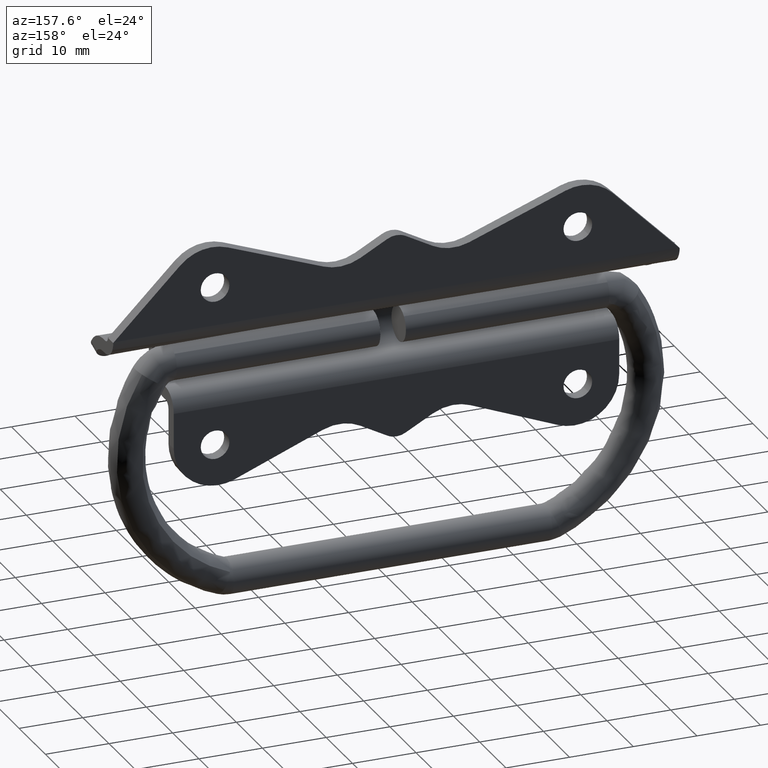
[diagram: clean part render]
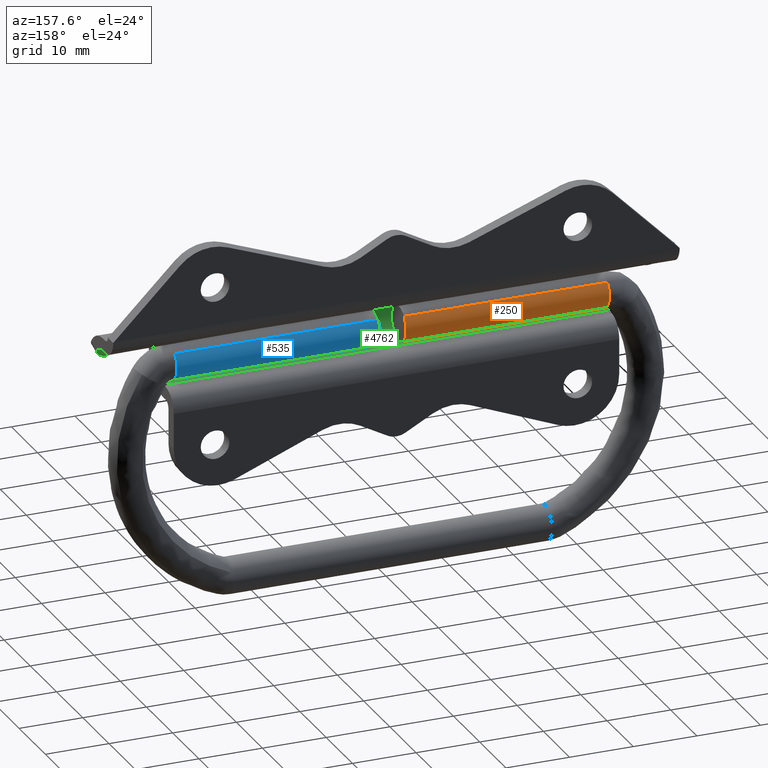
[diagram: same view with three faces highlighted in distinct colors, each labeled with its STEP entity id]
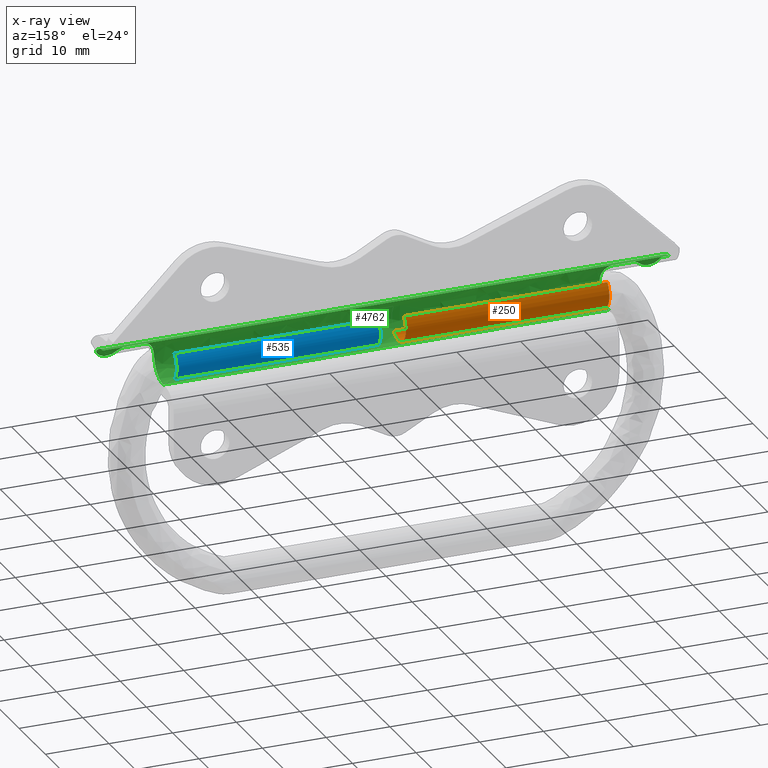
[diagram: x-ray of the same camera — body ghosted, the three highlighted faces saturated]
A machine part, auxiliary view with three faces highlighted in distinct colors.
The next image is the same camera in x-ray (body ghosted, the three faces saturated) — at least one of them is partly hidden behind the body in this view.
Their STEP definitions:

[orange] entity #250 — the highlighted face is a freeform B-spline surface patch.
#68=CARTESIAN_POINT('',(-2.000000000001109,1.970789749872381,1.917937691700324));
#69=VERTEX_POINT('',#68);
#79=CARTESIAN_POINT('',(-33.981062533550563,1.970790089012242,1.917938066010240));
#80=VERTEX_POINT('',#79);
#81=CARTESIAN_POINT('',(-33.981062533550563,1.970790089012242,1.917938066010240));
#82=CARTESIAN_POINT('',(-2.000000000001109,1.970789749872381,1.917937691700324));
#83=QUASI_UNIFORM_CURVE('',1,(#81,#82),.UNSPECIFIED.,.F.,.U.);
#84=EDGE_CURVE('',#80,#69,#83,.T.);
#112=CARTESIAN_POINT('',(-33.981062533732889,-1.857872832860353,-2.027512213007922));
#113=VERTEX_POINT('',#112);
#123=CARTESIAN_POINT('',(-2.000000000001109,-1.857872831660675,-2.027512214107224));
#124=VERTEX_POINT('',#123);
#125=CARTESIAN_POINT('',(-33.981062533732889,-1.857872832860353,-2.027512213007922));
#126=CARTESIAN_POINT('',(-2.000000000001109,-1.857872831660675,-2.027512214107224));
#127=QUASI_UNIFORM_CURVE('',1,(#125,#126),.UNSPECIFIED.,.F.,.U.);
#128=EDGE_CURVE('',#113,#124,#127,.T.);
#156=CARTESIAN_POINT('',(-34.780589099205123,-1.857873070943064,-2.027512676227842));
#157=CARTESIAN_POINT('',(-34.780589099205109,0.169639605284778,-3.885385747170906));
#158=CARTESIAN_POINT('',(-34.780589099205123,2.027512676227841,-1.857873070943064));
#159=CARTESIAN_POINT('',(-34.780589099205123,3.782001501671943,0.056815499295128));
#160=CARTESIAN_POINT('',(-34.780589099205123,1.970790173617540,1.917937979073501));
#161=CARTESIAN_POINT('',(-1.180485272521011,-1.857873070943064,-2.027512676227842));
#162=CARTESIAN_POINT('',(-1.180485272521011,0.169639605284778,-3.885385747170906));
#163=CARTESIAN_POINT('',(-1.180485272521011,2.027512676227841,-1.857873070943064));
#164=CARTESIAN_POINT('',(-1.180485272521011,3.782001501671943,0.056815499295128));
#165=CARTESIAN_POINT('',(-1.180485272521012,1.970790173617540,1.917937979073501));
#173=(BOUNDED_SURFACE()B_SPLINE_SURFACE(2,1,((#156,#161),(#157,#162),(#158,#163),(#159,#164),(#160,#165)),.UNSPECIFIED.,.F.,.F.,.U.)B_SPLINE_SURFACE_WITH_KNOTS((3,2,3),(2,2),(0.0,4.556349186104044,8.930444404763927),(0.0,33.600103826684112),.UNSPECIFIED.)GEOMETRIC_REPRESENTATION_ITEM()RATIONAL_B_SPLINE_SURFACE(((1.0,1.0),(0.707106781186548,0.707106781186548),(1.0,1.0),(0.718822509939086,0.718822509939086),(0.977505800795127,0.977505800795127)))REPRESENTATION_ITEM('')SURFACE());
#174=CARTESIAN_POINT('',(-2.000000000001110,2.749999999999260,-0.000002017147148));
#175=VERTEX_POINT('',#174);
#176=CARTESIAN_POINT('',(-2.000000000001109,1.970789749872381,1.917937691700324));
#177=CARTESIAN_POINT('',(-2.000000000001110,2.233320862650299,1.648863534074915));
#178=CARTESIAN_POINT('',(-2.000000000001112,2.620357776142525,1.038929036266846));
#179=CARTESIAN_POINT('',(-2.000000000001108,2.750277876837572,0.331677750709562));
#180=CARTESIAN_POINT('',(-2.000000000001110,2.749999999999260,-0.000002017147148));
#181=B_SPLINE_CURVE_WITH_KNOTS('',3,(#176,#177,#178,#179,#180),.UNSPECIFIED.,.F.,.U.,(4,1,4),(0.000000044119731,1.127581729578845,2.122525000011416),.UNSPECIFIED.);
#182=EDGE_CURVE('',#69,#175,#181,.T.);
#183=ORIENTED_EDGE('',*,*,#182,.T.);
#184=CARTESIAN_POINT('',(-2.000000000001110,0.0,-2.750000000000000));
#185=VERTEX_POINT('',#184);
#186=CARTESIAN_POINT('',(-2.000000000001110,2.749999999999260,-0.000002017147148));
#187=CARTESIAN_POINT('',(-2.000000000001108,2.750015365352819,-0.179980450263300));
#188=CARTESIAN_POINT('',(-2.000000000001113,2.707932078950563,-0.607462554633562));
#189=CARTESIAN_POINT('',(-2.000000000001108,2.508537933964640,-1.187116428170109));
#190=CARTESIAN_POINT('',(-2.000000000001108,2.109461070353325,-1.817507590486431));
#191=CARTESIAN_POINT('',(-2.000000000001122,1.534336724816101,-2.338881066016894));
#192=CARTESIAN_POINT('',(-2.000000000001090,0.764918915098658,-2.679685972453907));
#193=CARTESIAN_POINT('',(-2.000000000001126,0.247484863998335,-2.750076068007349));
#194=CARTESIAN_POINT('',(-2.000000000001110,0.0,-2.750000000000000));
#195=B_SPLINE_CURVE_WITH_KNOTS('',3,(#186,#187,#188,#189,#190,#191,#192,#193,#194),.UNSPECIFIED.,.F.,.U.,(4,1,1,1,1,1,4),(0.000000112675974,0.539954299364666,1.282445865138592,1.822447339180976,2.767355044537226,3.577333515327831,4.319797159997087),.UNSPECIFIED.);
#196=EDGE_CURVE('',#175,#185,#195,.T.);
#197=ORIENTED_EDGE('',*,*,#196,.T.);
#198=CARTESIAN_POINT('',(-2.000000000001110,0.0,-2.750000000000000));
#199=CARTESIAN_POINT('',(-2.000000000001105,-0.318761813068481,-2.750240986097441));
#200=CARTESIAN_POINT('',(-2.000000000001121,-0.998517648169818,-2.630358229492555));
#201=CARTESIAN_POINT('',(-2.000000000001104,-1.591784569032334,-2.271906993404191));
#202=CARTESIAN_POINT('',(-2.000000000001109,-1.857872831660675,-2.027512214107224));
#203=B_SPLINE_CURVE_WITH_KNOTS('',3,(#198,#199,#200,#201,#202),.UNSPECIFIED.,.F.,.U.,(4,1,4),(0.000000036204607,0.956211387785189,2.039899171962989),.UNSPECIFIED.);
#204=EDGE_CURVE('',#185,#124,#203,.T.);
#205=ORIENTED_EDGE('',*,*,#204,.T.);
#206=ORIENTED_EDGE('',*,*,#128,.F.);
#207=CARTESIAN_POINT('',(-33.981062533734203,-2.296137E-016,-2.750000000000000));
#208=VERTEX_POINT('',#207);
#209=CARTESIAN_POINT('',(-33.981062533734203,-2.296137E-016,-2.750000000000000));
#210=CARTESIAN_POINT('',(-33.981062533733947,-0.361277114100543,-2.750371904080902));
#211=CARTESIAN_POINT('',(-33.981062533733528,-1.040880719888545,-2.613945279301323));
#212=CARTESIAN_POINT('',(-33.981062533733031,-1.623013689535384,-2.243030740816635));
#213=CARTESIAN_POINT('',(-33.981062533732889,-1.857872832860353,-2.027512213007922));
#214=B_SPLINE_CURVE_WITH_KNOTS('',3,(#209,#210,#211,#212,#213),.UNSPECIFIED.,.F.,.U.,(4,1,4),(0.000000036204650,1.083687821229191,2.039899173590272),.UNSPECIFIED.);
#215=EDGE_CURVE('',#208,#113,#214,.T.);
#216=ORIENTED_EDGE('',*,*,#215,.F.);
#217=CARTESIAN_POINT('',(-33.981062535809897,1.065289451035193,-2.535282703272583));
#218=VERTEX_POINT('',#217);
#219=CARTESIAN_POINT('',(-33.981062535809897,1.065289451035193,-2.535282703272583));
#220=CARTESIAN_POINT('',(-33.981062534441662,0.729183679977894,-2.676806499385691));
#221=CARTESIAN_POINT('',(-33.981062533732420,0.364669892470249,-2.750194099655849));
#222=CARTESIAN_POINT('',(-33.981062533734203,-2.296137E-016,-2.750000000000000));
#223=B_SPLINE_CURVE_WITH_KNOTS('',3,(#219,#220,#221,#222),.UNSPECIFIED.,.F.,.U.,(4,4),(7.671848E-009,1.093939133476157),.UNSPECIFIED.);
#224=EDGE_CURVE('',#218,#208,#223,.T.);
#225=ORIENTED_EDGE('',*,*,#224,.F.);
#226=CARTESIAN_POINT('',(-33.981062535251169,2.340234824756398,-1.444230232683622));
#227=VERTEX_POINT('',#226);
#228=CARTESIAN_POINT('',(-33.981062535251169,2.340234824756398,-1.444230232683622));
#229=CARTESIAN_POINT('',(-33.981062534791569,2.200385593994336,-1.671040790827991));
#230=CARTESIAN_POINT('',(-33.981062534352510,1.830938782508246,-2.110901726353057));
#231=CARTESIAN_POINT('',(-33.981062535097067,1.343780914882861,-2.418483747542214));
#232=CARTESIAN_POINT('',(-33.981062535809897,1.065289451035193,-2.535282703272583));
#233=B_SPLINE_CURVE_WITH_KNOTS('',3,(#228,#229,#230,#231,#232),.UNSPECIFIED.,.F.,.U.,(4,1,4),(0.000000028580688,0.799359490042545,1.705274761928077),.UNSPECIFIED.);
#234=EDGE_CURVE('',#227,#218,#233,.T.);
#235=ORIENTED_EDGE('',*,*,#234,.F.);
#236=CARTESIAN_POINT('',(-33.981062533550563,1.970790089012242,1.917938066010240));
#237=CARTESIAN_POINT('',(-33.981062533612423,2.235878336360660,1.646253094349406));
#238=CARTESIAN_POINT('',(-33.981062533772722,2.536025457715319,1.171133006203666));
#239=CARTESIAN_POINT('',(-33.981062534115402,2.740329983376412,0.416946847351416));
#240=CARTESIAN_POINT('',(-33.981062534396408,2.765687179886545,-0.117801226936726));
#241=CARTESIAN_POINT('',(-33.981062534784733,2.666627915332732,-0.776240753774080));
#242=CARTESIAN_POINT('',(-33.981062535059877,2.499877766630544,-1.185964645352375));
#243=CARTESIAN_POINT('',(-33.981062535251169,2.340234824756398,-1.444230232683622));
#244=B_SPLINE_CURVE_WITH_KNOTS('',3,(#236,#237,#238,#239,#240,#241,#242,#243),.UNSPECIFIED.,.F.,.U.,(4,1,1,1,1,4),(0.000000124910282,1.138469214587453,1.650795331450802,2.333835635815750,2.732300773864886,3.643067643411854),.UNSPECIFIED.);
#245=EDGE_CURVE('',#80,#227,#244,.T.);
#246=ORIENTED_EDGE('',*,*,#245,.F.);
#247=ORIENTED_EDGE('',*,*,#84,.T.);
#248=EDGE_LOOP('',(#183,#197,#205,#206,#216,#225,#235,#246,#247));
#249=FACE_OUTER_BOUND('',#248,.T.);
#250=ADVANCED_FACE('',(#249),#173,.T.);

[blue] entity #535 — the highlighted face is a freeform B-spline surface patch.
#457=CARTESIAN_POINT('',(1.200473436590970,1.917937979073501,-1.970790173617539));
#458=CARTESIAN_POINT('',(1.200473436590970,1.974341147133709,-1.915899612658343));
#459=CARTESIAN_POINT('',(1.200473436590970,2.027512676227842,-1.857873070943064));
#460=CARTESIAN_POINT('',(1.200473436590970,3.885385747170906,0.169639605284778));
#461=CARTESIAN_POINT('',(1.200473436590970,1.857873070943064,2.027512676227842));
#462=CARTESIAN_POINT('',(34.800577263808783,1.917937979073501,-1.970790173617539));
#463=CARTESIAN_POINT('',(34.800577263808790,1.974341147133709,-1.915899612658343));
#464=CARTESIAN_POINT('',(34.800577263808783,2.027512676227842,-1.857873070943064));
#465=CARTESIAN_POINT('',(34.800577263808783,3.885385747170906,0.169639605284778));
#466=CARTESIAN_POINT('',(34.800577263808783,1.857873070943064,2.027512676227842));
#474=(BOUNDED_SURFACE()B_SPLINE_SURFACE(2,1,((#457,#462),(#458,#463),(#459,#464),(#460,#465),(#461,#466)),.UNSPECIFIED.,.F.,.F.,.U.)B_SPLINE_SURFACE_WITH_KNOTS((3,2,3),(2,2),(0.0,0.182253967444161,4.738603153548205),(0.0,33.600103827217822),.UNSPECIFIED.)GEOMETRIC_REPRESENTATION_ITEM()RATIONAL_B_SPLINE_SURFACE(((0.977505800795127,0.977505800795127),(0.988284271247462,0.988284271247462),(1.0,1.0),(0.707106781186548,0.707106781186548),(1.0,1.0)))REPRESENTATION_ITEM('')SURFACE());
#475=CARTESIAN_POINT('',(33.981062533731937,2.749999999999260,-0.000002017147148));
#476=VERTEX_POINT('',#475);
#477=CARTESIAN_POINT('',(33.981062533732299,1.917938386890228,-1.970790480148908));
#478=VERTEX_POINT('',#477);
#479=CARTESIAN_POINT('',(33.981062533731937,2.749999999999260,-0.000002017147148));
#480=CARTESIAN_POINT('',(33.981062533732050,2.750174103478151,-0.297565216022169));
#481=CARTESIAN_POINT('',(33.981062533732008,2.659975026607757,-0.846765203789295));
#482=CARTESIAN_POINT('',(33.981062533732263,2.330450884282382,-1.508600384863065));
#483=CARTESIAN_POINT('',(33.981062533732292,2.049166549701322,-1.843102201875480));
#484=CARTESIAN_POINT('',(33.981062533732299,1.917938386890228,-1.970790480148908));
#485=B_SPLINE_CURVE_WITH_KNOTS('',3,(#479,#480,#481,#482,#483,#484),.UNSPECIFIED.,.F.,.U.,(4,1,1,4),(0.000000032673275,0.892651698252027,1.647955066495382,2.197273411155111),.UNSPECIFIED.);
#486=EDGE_CURVE('',#476,#478,#485,.T.);
#487=ORIENTED_EDGE('',*,*,#486,.T.);
#488=CARTESIAN_POINT('',(1.999999999998891,1.917938386149194,-1.970790480870069));
#489=VERTEX_POINT('',#488);
#490=CARTESIAN_POINT('',(1.999999999998891,1.917938386149194,-1.970790480870069));
#491=CARTESIAN_POINT('',(33.981062533732299,1.917938386890228,-1.970790480148908));
#492=QUASI_UNIFORM_CURVE('',1,(#490,#491),.UNSPECIFIED.,.F.,.U.);
#493=EDGE_CURVE('',#489,#478,#492,.T.);
#494=ORIENTED_EDGE('',*,*,#493,.F.);
#495=CARTESIAN_POINT('',(1.999999999998890,2.749999999999260,-0.000002017147148));
#496=VERTEX_POINT('',#495);
#497=CARTESIAN_POINT('',(1.999999999998890,2.749999999999260,-0.000002017147148));
#498=CARTESIAN_POINT('',(1.999999999998885,2.750173687504857,-0.297568103747120));
#499=CARTESIAN_POINT('',(1.999999999998901,2.659976145916174,-0.846761941265371));
#500=CARTESIAN_POINT('',(1.999999999998889,2.330449479150865,-1.508603466895688));
#501=CARTESIAN_POINT('',(1.999999999998889,2.049167462958884,-1.843100417786015));
#502=CARTESIAN_POINT('',(1.999999999998891,1.917938386149194,-1.970790480870069));
#503=B_SPLINE_CURVE_WITH_KNOTS('',3,(#497,#498,#499,#500,#501,#502),.UNSPECIFIED.,.F.,.U.,(4,1,1,4),(0.000000032673201,0.892651698672111,1.647955067270955,2.197273412189214),.UNSPECIFIED.);
#504=EDGE_CURVE('',#496,#489,#503,.T.);
#505=ORIENTED_EDGE('',*,*,#504,.F.);
#506=CARTESIAN_POINT('',(1.999999999998891,1.857872831660672,2.027512214107222));
#507=VERTEX_POINT('',#506);
#508=CARTESIAN_POINT('',(1.999999999998891,1.857872831660672,2.027512214107222));
#509=CARTESIAN_POINT('',(1.999999999998891,2.032977345333147,1.867099763858749));
#510=CARTESIAN_POINT('',(1.999999999998892,2.387714702581166,1.445648903141848));
#511=CARTESIAN_POINT('',(1.999999999998889,2.688956162967950,0.736252700845954));
#512=CARTESIAN_POINT('',(1.999999999998893,2.750007880927264,0.213720373135212));
#513=CARTESIAN_POINT('',(1.999999999998890,2.749999999999260,-0.000002017147148));
#514=B_SPLINE_CURVE_WITH_KNOTS('',3,(#508,#509,#510,#511,#512,#513),.UNSPECIFIED.,.F.,.U.,(4,1,1,4),(0.000000021834620,0.712471595642213,1.638679371437665,2.279901749804279),.UNSPECIFIED.);
#515=EDGE_CURVE('',#507,#496,#514,.T.);
#516=ORIENTED_EDGE('',*,*,#515,.F.);
#517=CARTESIAN_POINT('',(33.981062533730629,1.857872832889593,2.027512212981123));
#518=VERTEX_POINT('',#517);
#519=CARTESIAN_POINT('',(1.999999999998891,1.857872831660672,2.027512214107222));
#520=CARTESIAN_POINT('',(33.981062533730629,1.857872832889593,2.027512212981123));
#521=QUASI_UNIFORM_CURVE('',1,(#519,#520),.UNSPECIFIED.,.F.,.U.);
#522=EDGE_CURVE('',#507,#518,#521,.T.);
#523=ORIENTED_EDGE('',*,*,#522,.T.);
#524=CARTESIAN_POINT('',(33.981062533730629,1.857872832889593,2.027512212981123));
#525=CARTESIAN_POINT('',(33.981062533730700,2.138414391365817,1.771088668026431));
#526=CARTESIAN_POINT('',(33.981062533731283,2.434577111217732,1.356671559028313));
#527=CARTESIAN_POINT('',(33.981062533731283,2.695403129419186,0.641136697259485));
#528=CARTESIAN_POINT('',(33.981062533731901,2.750118164144974,0.261243939033962));
#529=CARTESIAN_POINT('',(33.981062533731937,2.749999999999260,-0.000002017147148));
#530=B_SPLINE_CURVE_WITH_KNOTS('',3,(#524,#525,#526,#527,#528,#529),.UNSPECIFIED.,.F.,.U.,(4,1,1,4),(0.000000021834638,1.139950929231630,1.496185229564904,2.279901748137302),.UNSPECIFIED.);
#531=EDGE_CURVE('',#518,#476,#530,.T.);
#532=ORIENTED_EDGE('',*,*,#531,.T.);
#533=EDGE_LOOP('',(#487,#494,#505,#516,#523,#532));
#534=FACE_OUTER_BOUND('',#533,.T.);
#535=ADVANCED_FACE('',(#534),#474,.T.);

[green] entity #4762 — the highlighted face is a freeform B-spline surface patch.
#2458=CARTESIAN_POINT('',(-41.174200304554937,-3.140973020033335,1.544114143262300));
#2459=VERTEX_POINT('',#2458);
#2473=CARTESIAN_POINT('',(-38.537896570186149,-2.449239850562730,2.500244818895830));
#2474=VERTEX_POINT('',#2473);
#2475=CARTESIAN_POINT('',(-38.537896570186149,-2.449239850562735,2.500244818895835));
#2476=CARTESIAN_POINT('',(-38.787632194147633,-2.449239850562737,2.500244818895833));
#2477=CARTESIAN_POINT('',(-39.032614182131027,-2.469117419639682,2.481192624209510));
#2478=CARTESIAN_POINT('',(-39.393363345220962,-2.525085044819814,2.423769777439118));
#2479=CARTESIAN_POINT('',(-39.512481991733203,-2.548103868230373,2.399741695921427));
#2480=CARTESIAN_POINT('',(-39.689440809534673,-2.588656564855894,2.355685796501126));
#2481=CARTESIAN_POINT('',(-39.748046704850303,-2.603162538308903,2.339673818588184));
#2482=CARTESIAN_POINT('',(-39.863327991723082,-2.633680039812443,2.305267495570828));
#2483=CARTESIAN_POINT('',(-39.920172227554843,-2.649729114027535,2.286832635641629));
#2484=CARTESIAN_POINT('',(-40.200529740568989,-2.733430112822872,2.188388886118200));
#2485=CARTESIAN_POINT('',(-40.412464990667068,-2.811537239139049,2.089670310868204));
#2486=CARTESIAN_POINT('',(-40.663493623649721,-2.914537143034051,1.938250427660132));
#2487=CARTESIAN_POINT('',(-40.713077283970662,-2.935431352036618,1.906505427374329));
#2488=CARTESIAN_POINT('',(-40.810161639118569,-2.977173826518971,1.840640153266708));
#2489=CARTESIAN_POINT('',(-40.857743057227957,-2.998053624124694,1.806476673220619));
#2490=CARTESIAN_POINT('',(-40.997783822798070,-3.060341023910139,1.700307864312355));
#2491=CARTESIAN_POINT('',(-41.087533387018837,-3.101397676744905,1.624616667036155));
#2492=CARTESIAN_POINT('',(-41.174200304554937,-3.140973020033335,1.544114143262300));
#2493=B_SPLINE_CURVE_WITH_KNOTS('',3,(#2475,#2476,#2477,#2478,#2479,#2480,#2481,#2482,#2483,#2484,#2485,#2486,#2487,#2488,#2489,#2490,#2491,#2492),.UNSPECIFIED.,.F.,.U.,(4,2,2,2,2,2,2,2,4),(0.0,0.250000000000013,0.375000000000016,0.437500000000015,0.500000000000013,0.750000000000006,0.812500000000005,0.875000000000003,1.0),.UNSPECIFIED.);
#2494=EDGE_CURVE('',#2474,#2459,#2493,.T.);
#2527=CARTESIAN_POINT('',(-35.0,-3.404659740537790,-0.811351989682125));
#2528=VERTEX_POINT('',#2527);
#2529=CARTESIAN_POINT('',(-38.0,-2.449239850562730,2.500244818895830));
#2530=VERTEX_POINT('',#2529);
#2531=CARTESIAN_POINT('',(-35.0,-3.404659740537790,-0.811351989682125));
#2532=CARTESIAN_POINT('',(-35.0,-3.456153598510439,-0.595269367892859));
#2533=CARTESIAN_POINT('',(-35.006408248385171,-3.486447513624695,-0.377633652108053));
#2534=CARTESIAN_POINT('',(-35.035188575435818,-3.501359820461423,-0.049601086423726));
#2535=CARTESIAN_POINT('',(-35.048004419943837,-3.501210687993984,0.060035304039063));
#2536=CARTESIAN_POINT('',(-35.082155070718599,-3.490545055472809,0.279599240286352));
#2537=CARTESIAN_POINT('',(-35.103151526354793,-3.480139537682903,0.387256816405310));
#2538=CARTESIAN_POINT('',(-35.179894935489870,-3.435171114591122,0.703530800934364));
#2539=CARTESIAN_POINT('',(-35.249228052863273,-3.386862207730686,0.905500051308581));
#2540=CARTESIAN_POINT('',(-35.437429600024977,-3.260269818900228,1.288955648981955));
#2541=CARTESIAN_POINT('',(-35.551810661289380,-3.185203199917245,1.460981774969360));
#2542=CARTESIAN_POINT('',(-35.721901742371109,-3.085345707246337,1.653032384739883));
#2543=CARTESIAN_POINT('',(-35.757287963515033,-3.065064738341207,1.690296885653568));
#2544=CARTESIAN_POINT('',(-35.830881881211837,-3.024086120138117,1.762563062662100));
#2545=CARTESIAN_POINT('',(-35.869093610716973,-3.003392478896410,1.797545602180312));
#2546=CARTESIAN_POINT('',(-35.986371971915652,-2.941873767936331,1.897768434336837));
#2547=CARTESIAN_POINT('',(-36.068592643446742,-2.901320601415886,1.958829577594720));
#2548=CARTESIAN_POINT('',(-36.240980437518402,-2.822606971012075,2.070643482942969));
#2549=CARTESIAN_POINT('',(-36.331146895597762,-2.784441976002854,2.121394128820939));
#2550=CARTESIAN_POINT('',(-36.472447460987752,-2.730039816284724,2.190374429950444));
#2551=CARTESIAN_POINT('',(-36.520607890411910,-2.712368680280461,2.212184263390602));
#2552=CARTESIAN_POINT('',(-36.617812587582030,-2.678540863009074,2.253025059370180));
#2553=CARTESIAN_POINT('',(-36.666993037983417,-2.662329281452267,2.272126939953357));
#2554=CARTESIAN_POINT('',(-36.915735115129223,-2.585049436911874,2.361450392229484));
#2555=CARTESIAN_POINT('',(-37.123907641744957,-2.535257455356746,2.413474282305579));
#2556=CARTESIAN_POINT('',(-37.557813688187537,-2.466881343410452,2.483321347273815));
#2557=CARTESIAN_POINT('',(-37.777526340169729,-2.449239850562730,2.500244818895830));
#2558=CARTESIAN_POINT('',(-38.0,-2.449239850562730,2.500244818895830));
#2559=B_SPLINE_CURVE_WITH_KNOTS('',3,(#2531,#2532,#2533,#2534,#2535,#2536,#2537,#2538,#2539,#2540,#2541,#2542,#2543,#2544,#2545,#2546,#2547,#2548,#2549,#2550,#2551,#2552,#2553,#2554,#2555,#2556,#2557,#2558),.UNSPECIFIED.,.F.,.U.,(4,2,2,2,2,2,2,2,2,2,2,2,2,4),(0.0,0.125000000000006,0.187500000000009,0.250000000000012,0.375000000000020,0.500000000000027,0.531250000000027,0.562500000000027,0.625000000000025,0.687500000000022,0.718750000000019,0.750000000000016,0.875000000000008,1.0),.UNSPECIFIED.);
#2560=EDGE_CURVE('',#2528,#2530,#2559,.T.);
#2627=CARTESIAN_POINT('',(-42.559969749689600,-3.354093636192055,1.000027939437676));
#2628=VERTEX_POINT('',#2627);
#2629=CARTESIAN_POINT('',(-44.500000000000000,-2.237514870401845,2.691380167261885));
#2630=VERTEX_POINT('',#2629);
#2631=CARTESIAN_POINT('',(-42.559969749689600,-3.354093636192055,1.000027939437676));
#2632=CARTESIAN_POINT('',(-42.692758600804993,-3.354093636192056,1.000027939437676));
#2633=CARTESIAN_POINT('',(-42.823256778838129,-3.350310000809810,1.012976842898872));
#2634=CARTESIAN_POINT('',(-43.015703792582450,-3.338544441306505,1.050854799610934));
#2635=CARTESIAN_POINT('',(-43.079298363082437,-3.333587605085587,1.066577373044677));
#2636=CARTESIAN_POINT('',(-43.173835951579242,-3.324358415508336,1.094869640005919));
#2637=CARTESIAN_POINT('',(-43.205294325328353,-3.320970253020246,1.105119819401523));
#2638=CARTESIAN_POINT('',(-43.267322536677511,-3.313608835991731,1.127000318862837));
#2639=CARTESIAN_POINT('',(-43.297920195456378,-3.309634981307847,1.138633421009387));
#2640=CARTESIAN_POINT('',(-43.448862356863550,-3.288211331010659,1.200159436738023));
#2641=CARTESIAN_POINT('',(-43.563130254704383,-3.266189622261705,1.260049339920063));
#2642=CARTESIAN_POINT('',(-43.724730264974397,-3.223083932651911,1.364976084032918));
#2643=CARTESIAN_POINT('',(-43.777248515238462,-3.206898352044421,1.402740282985524));
#2644=CARTESIAN_POINT('',(-43.876813125471926,-3.171190405372854,1.481697929649186));
#2645=CARTESIAN_POINT('',(-43.923980135144113,-3.151667238458723,1.522918978546097));
#2646=CARTESIAN_POINT('',(-44.013222561218683,-3.108865987508219,1.608490245200281));
#2647=CARTESIAN_POINT('',(-44.055297490722381,-3.085588619975044,1.652841321408153));
#2648=CARTESIAN_POINT('',(-44.134359898016797,-3.034765901780525,1.744401756151370));
#2649=CARTESIAN_POINT('',(-44.171474329933652,-3.007108730974061,1.791793286749250));
#2650=CARTESIAN_POINT('',(-44.274162004348767,-2.917523634784310,1.936739592675106));
#2651=CARTESIAN_POINT('',(-44.329656249666947,-2.850444670640472,2.034761948809230));
#2652=CARTESIAN_POINT('',(-44.395474115916137,-2.737414881931382,2.181830084208377));
#2653=CARTESIAN_POINT('',(-44.414496872271137,-2.697650231994712,2.230881654955563));
#2654=CARTESIAN_POINT('',(-44.446830465289821,-2.613731057847503,2.328639020939434));
#2655=CARTESIAN_POINT('',(-44.459876936152000,-2.570277697865324,2.376528403016216));
#2656=CARTESIAN_POINT('',(-44.490630460764287,-2.435426128250559,2.517053505943256));
#2657=CARTESIAN_POINT('',(-44.499999010729177,-2.339549970096386,2.606551923505546));
#2658=CARTESIAN_POINT('',(-44.500000000000000,-2.237514870401845,2.691380167261885));
#2659=B_SPLINE_CURVE_WITH_KNOTS('',3,(#2631,#2632,#2633,#2634,#2635,#2636,#2637,#2638,#2639,#2640,#2641,#2642,#2643,#2644,#2645,#2646,#2647,#2648,#2649,#2650,#2651,#2652,#2653,#2654,#2655,#2656,#2657,#2658),.UNSPECIFIED.,.F.,.U.,(4,2,2,2,2,2,2,2,2,2,2,2,2,4),(0.0,0.124999999999997,0.187499999999998,0.218749999999999,0.250000000000000,0.375000000000002,0.437500000000001,0.500000000000000,0.562499999999999,0.624999999999998,0.749999999999999,0.812499999999999,0.874999999999999,1.0),.UNSPECIFIED.);
#2660=EDGE_CURVE('',#2628,#2630,#2659,.T.);
#2722=CARTESIAN_POINT('',(-41.174200304554937,-3.140973020033335,1.544114143262300));
#2723=CARTESIAN_POINT('',(-41.263807976005488,-3.181890132915331,1.460882247368595));
#2724=CARTESIAN_POINT('',(-41.361731488401951,-3.215038704454127,1.385209074112934));
#2725=CARTESIAN_POINT('',(-41.521008147707363,-3.256072758044962,1.284254533514751));
#2726=CARTESIAN_POINT('',(-41.576500815612242,-3.268342221139555,1.252554842043758));
#2727=CARTESIAN_POINT('',(-41.689879955062779,-3.289944234593073,1.194663735148305));
#2728=CARTESIAN_POINT('',(-41.805619683104332,-3.308658224647705,1.142200455855963));
#2729=CARTESIAN_POINT('',(-41.925963729081531,-3.322507901965800,1.100590959562588));
#2730=CARTESIAN_POINT('',(-42.048620470630027,-3.334232458896669,1.064543624721865));
#2731=CARTESIAN_POINT('',(-42.111239179882361,-3.339039911554033,1.049275040577420));
#2732=CARTESIAN_POINT('',(-42.301817803464189,-3.350479479051261,1.012398057768990));
#2733=CARTESIAN_POINT('',(-42.430218111149742,-3.354093636192054,1.000027939437676));
#2734=CARTESIAN_POINT('',(-42.559969749689600,-3.354093636192055,1.000027939437676));
#2735=B_SPLINE_CURVE_WITH_KNOTS('',3,(#2722,#2723,#2724,#2725,#2726,#2727,#2728,#2729,#2730,#2731,#2732,#2733,#2734),.UNSPECIFIED.,.F.,.U.,(4,2,2,1,2,2,4),(0.0,0.250000000000008,0.375000000000007,0.500000000000006,0.625000000000004,0.750000000000003,1.0),.UNSPECIFIED.);
#2736=EDGE_CURVE('',#2459,#2628,#2735,.T.);
#2776=CARTESIAN_POINT('',(37.999499999999998,-2.449239850562730,2.500244818895830));
#2777=VERTEX_POINT('',#2776);
#2778=CARTESIAN_POINT('',(34.999500000000012,-3.404659740537810,-0.811351989682048));
#2779=VERTEX_POINT('',#2778);
#2780=CARTESIAN_POINT('',(37.999499999999998,-2.449239850562730,2.500244818895830));
#2781=CARTESIAN_POINT('',(37.777072626395089,-2.449239850562730,2.500244818895830));
#2782=CARTESIAN_POINT('',(37.558777422939357,-2.466864738809534,2.483320082921931));
#2783=CARTESIAN_POINT('',(37.237309088045834,-2.517204569433716,2.431924386998561));
#2784=CARTESIAN_POINT('',(37.131157990494053,-2.537976663861284,2.410389456979783));
#2785=CARTESIAN_POINT('',(36.920942452061283,-2.587148175022371,2.357534135723629));
#2786=CARTESIAN_POINT('',(36.818568083815890,-2.615160106289912,2.326616734965191));
#2787=CARTESIAN_POINT('',(36.520824553351957,-2.707433717826078,2.220052683018997));
#2788=CARTESIAN_POINT('',(36.334095711740488,-2.780118722185689,2.130703331033387));
#2789=CARTESIAN_POINT('',(36.116057815354203,-2.879359900941668,1.990093304469581));
#2790=CARTESIAN_POINT('',(36.073419989600957,-2.899541006124589,1.960613806891859));
#2791=CARTESIAN_POINT('',(35.990876712213193,-2.939981145316216,1.899435550672386));
#2792=CARTESIAN_POINT('',(35.950844009404740,-2.960297742290123,1.867656038375087));
#2793=CARTESIAN_POINT('',(35.834395385130122,-3.021239290435879,1.768649301776417));
#2794=CARTESIAN_POINT('',(35.761622182539249,-3.061859287574209,1.697762487244616));
#2795=CARTESIAN_POINT('',(35.625617947900722,-3.141463472464858,1.545505422561986));
#2796=CARTESIAN_POINT('',(35.562388112847728,-3.180453143354490,1.464137001744678));
#2797=CARTESIAN_POINT('',(35.474722676457858,-3.236375563873040,1.333460928862677));
#2798=CARTESIAN_POINT('',(35.446947112670742,-3.254429019012954,1.288818917954186));
#2799=CARTESIAN_POINT('',(35.394481832694872,-3.288963111986939,1.197949953486961));
#2800=CARTESIAN_POINT('',(35.369733444272022,-3.305481345023442,1.151635950514778));
#2801=CARTESIAN_POINT('',(35.299702821870440,-3.352551999593270,1.010091198500114));
#2802=CARTESIAN_POINT('',(35.258629928508107,-3.380623007718879,0.912260790982720));
#2803=CARTESIAN_POINT('',(35.204614313632952,-3.416797422136899,0.760396800262408));
#2804=CARTESIAN_POINT('',(35.187876214899042,-3.427866408389913,0.708921609171491));
#2805=CARTESIAN_POINT('',(35.156809660234323,-3.447854103738333,0.604268186365124));
#2806=CARTESIAN_POINT('',(35.142483923150230,-3.456767226928876,0.551053704110133));
#2807=CARTESIAN_POINT('',(35.077397778085960,-3.495058642037614,0.284539319685407));
#2808=CARTESIAN_POINT('',(35.045125552161807,-3.506330126844346,0.066998029281050));
#2809=CARTESIAN_POINT('',(35.020656379475000,-3.494192212651610,-0.208981487079224));
#2810=CARTESIAN_POINT('',(35.016567004855858,-3.490436158404881,-0.264431226894151));
#2811=CARTESIAN_POINT('',(35.009853482078157,-3.480319915446867,-0.374755568071897));
#2812=CARTESIAN_POINT('',(35.007217288297873,-3.473957538355709,-0.429747311034747));
#2813=CARTESIAN_POINT('',(35.001132313989586,-3.450967976974170,-0.594201094293012));
#2814=CARTESIAN_POINT('',(34.999500000000033,-3.430446702092262,-0.703142690941507));
#2815=CARTESIAN_POINT('',(34.999500000000012,-3.404659740537810,-0.811351989682048));
#2816=B_SPLINE_CURVE_WITH_KNOTS('',3,(#2780,#2781,#2782,#2783,#2784,#2785,#2786,#2787,#2788,#2789,#2790,#2791,#2792,#2793,#2794,#2795,#2796,#2797,#2798,#2799,#2800,#2801,#2802,#2803,#2804,#2805,#2806,#2807,#2808,#2809,#2810,#2811,#2812,#2813,#2814,#2815),.UNSPECIFIED.,.F.,.U.,(4,2,2,2,2,2,2,2,2,2,2,2,2,2,2,2,2,4),(0.0,0.125000000000002,0.187500000000003,0.250000000000004,0.375000000000006,0.406250000000006,0.437500000000006,0.500000000000005,0.562500000000005,0.593750000000004,0.625000000000004,0.687500000000003,0.718750000000003,0.750000000000003,0.875000000000001,0.906250000000001,0.937500000000001,1.0),.UNSPECIFIED.);
#2817=EDGE_CURVE('',#2777,#2779,#2816,.T.);
#2930=CARTESIAN_POINT('',(38.537396570186047,-2.449239850562730,2.500244818895830));
#2931=VERTEX_POINT('',#2930);
#2945=CARTESIAN_POINT('',(41.173700304554849,-3.140973020033335,1.544114143262300));
#2946=VERTEX_POINT('',#2945);
#2947=CARTESIAN_POINT('',(41.173700304554849,-3.140973020033335,1.544114143262300));
#2948=CARTESIAN_POINT('',(41.000238854864797,-3.061764059867735,1.705237728530039));
#2949=CARTESIAN_POINT('',(40.815624821115073,-2.977278438233572,1.845798056769115));
#2950=CARTESIAN_POINT('',(40.517328332387741,-2.854713234381318,2.026302467731297));
#2951=CARTESIAN_POINT('',(40.414355552091628,-2.814536796691730,2.081438779839151));
#2952=CARTESIAN_POINT('',(40.254080342086837,-2.756723952907649,2.156727669643025));
#2953=CARTESIAN_POINT('',(40.199539042861367,-2.737813572864559,2.180646389670055));
#2954=CARTESIAN_POINT('',(40.089146613698347,-2.701285396774147,2.225735618108584));
#2955=CARTESIAN_POINT('',(40.033452233316282,-2.683715102627057,2.246852395742543));
#2956=CARTESIAN_POINT('',(39.752484119090290,-2.599748624425441,2.345648340003024));
#2957=CARTESIAN_POINT('',(39.519765948124103,-2.545086967906688,2.403217009106411));
#2958=CARTESIAN_POINT('',(39.218517792247589,-2.497963063690476,2.451604171074476));
#2959=CARTESIAN_POINT('',(39.157747449889222,-2.489594555033934,2.460086304944930));
#2960=CARTESIAN_POINT('',(39.035138869507179,-2.475100625034761,2.474668174156840));
#2961=CARTESIAN_POINT('',(38.973159014918409,-2.468966389771413,2.480776658259942));
#2962=CARTESIAN_POINT('',(38.786992967837733,-2.454226709411373,2.495388287775031));
#2963=CARTESIAN_POINT('',(38.662425818372782,-2.449239850562730,2.500244818895831));
#2964=CARTESIAN_POINT('',(38.537396570186047,-2.449239850562730,2.500244818895830));
#2965=B_SPLINE_CURVE_WITH_KNOTS('',3,(#2947,#2948,#2949,#2950,#2951,#2952,#2953,#2954,#2955,#2956,#2957,#2958,#2959,#2960,#2961,#2962,#2963,#2964),.UNSPECIFIED.,.F.,.U.,(4,2,2,2,2,2,2,2,4),(0.0,0.249999999999997,0.374999999999992,0.437499999999989,0.499999999999987,0.749999999999983,0.812499999999986,0.874999999999988,1.0),.UNSPECIFIED.);
#2966=EDGE_CURVE('',#2946,#2931,#2965,.T.);
#3022=CARTESIAN_POINT('',(42.559469749689583,-3.354093636192055,1.000027939437676));
#3023=VERTEX_POINT('',#3022);
#3024=CARTESIAN_POINT('',(42.559469749689583,-3.354093636192055,1.000027939437676));
#3025=CARTESIAN_POINT('',(42.429488984010590,-3.354093636192055,1.000027939437676));
#3026=CARTESIAN_POINT('',(42.301703951076533,-3.350464014112377,1.012439149499321));
#3027=CARTESIAN_POINT('',(42.113188469962310,-3.339205849591440,1.048744406125506));
#3028=CARTESIAN_POINT('',(42.050881034460957,-3.334465789204586,1.063813420878767));
#3029=CARTESIAN_POINT('',(41.927354756443421,-3.322718080083429,1.099957114665942));
#3030=CARTESIAN_POINT('',(41.866058839985328,-3.315682324551720,1.121105112783140));
#3031=CARTESIAN_POINT('',(41.687943442696778,-3.291133348019254,1.192034014014842));
#3032=CARTESIAN_POINT('',(41.575431704531923,-3.270134241998879,1.249593526552787));
#3033=CARTESIAN_POINT('',(41.442589642118570,-3.236019991256253,1.333605446743298));
#3034=CARTESIAN_POINT('',(41.416414649377508,-3.228798500187475,1.351015741759248));
#3035=CARTESIAN_POINT('',(41.364866186663541,-3.213482709346605,1.387051608998234));
#3036=CARTESIAN_POINT('',(41.339432640656781,-3.205365267535165,1.405727298365767));
#3037=CARTESIAN_POINT('',(41.265194662093108,-3.179872513459261,1.462926430450848));
#3038=CARTESIAN_POINT('',(41.218224531052392,-3.161303899879807,1.502757909754590));
#3039=CARTESIAN_POINT('',(41.173700304554849,-3.140973020033335,1.544114143262300));
#3040=B_SPLINE_CURVE_WITH_KNOTS('',3,(#3024,#3025,#3026,#3027,#3028,#3029,#3030,#3031,#3032,#3033,#3034,#3035,#3036,#3037,#3038,#3039),.UNSPECIFIED.,.F.,.U.,(4,2,2,2,2,2,2,4),(0.0,0.250000000000004,0.375000000000006,0.500000000000007,0.749999999999998,0.812499999999999,0.874999999999999,1.0),.UNSPECIFIED.);
#3041=EDGE_CURVE('',#3023,#2946,#3040,.T.);
#3065=CARTESIAN_POINT('',(44.499499999999998,-2.237514870401845,2.691380167261885));
#3066=VERTEX_POINT('',#3065);
#3067=CARTESIAN_POINT('',(44.499499999999998,-2.237514870401845,2.691380167261885));
#3068=CARTESIAN_POINT('',(44.499499011044833,-2.339517413672957,2.606578989723257));
#3069=CARTESIAN_POINT('',(44.490133171147477,-2.435238925555359,2.517215406280634));
#3070=CARTESIAN_POINT('',(44.459522193962442,-2.569727786014044,2.377117921417971));
#3071=CARTESIAN_POINT('',(44.446546876242699,-2.613038384714333,2.329408696771457));
#3072=CARTESIAN_POINT('',(44.422464337055217,-2.675737138030160,2.256426242382519));
#3073=CARTESIAN_POINT('',(44.413635556378978,-2.696313847230588,2.231791863791501));
#3074=CARTESIAN_POINT('',(44.394568227934663,-2.736263952938912,2.182627514236103));
#3075=CARTESIAN_POINT('',(44.384320051180730,-2.755676595629871,2.158055831398937));
#3076=CARTESIAN_POINT('',(44.329473248967837,-2.850036370933154,2.035344742925186));
#3077=CARTESIAN_POINT('',(44.274134918271088,-2.916904752782246,1.937625265254292));
#3078=CARTESIAN_POINT('',(44.172427168406621,-3.005941878262891,1.793737627370351));
#3079=CARTESIAN_POINT('',(44.135128784723392,-3.033879918444245,1.745952804560245));
#3080=CARTESIAN_POINT('',(44.055691904386727,-3.085082107469301,1.653797734145202));
#3081=CARTESIAN_POINT('',(44.013483731774578,-3.108467585878726,1.609263202274846));
#3082=CARTESIAN_POINT('',(43.924141802568208,-3.151382711123961,1.523511009045748));
#3083=CARTESIAN_POINT('',(43.877008255743299,-3.170911405929640,1.482292647186138));
#3084=CARTESIAN_POINT('',(43.777739733951471,-3.206572057614644,1.403483621379947));
#3085=CARTESIAN_POINT('',(43.725283206209667,-3.222779470184948,1.365699443912381));
#3086=CARTESIAN_POINT('',(43.563158582557087,-3.266095319419698,1.260313969873129));
#3087=CARTESIAN_POINT('',(43.448669066472213,-3.288158956324343,1.200304550539961));
#3088=CARTESIAN_POINT('',(43.297681757614832,-3.309600055310642,1.138735041567715));
#3089=CARTESIAN_POINT('',(43.267086738145842,-3.313575410817287,1.127098587746687));
#3090=CARTESIAN_POINT('',(43.205089403832382,-3.320937285079161,1.105218882504540));
#3091=CARTESIAN_POINT('',(43.173623169176231,-3.324328626534375,1.094960202668538));
#3092=CARTESIAN_POINT('',(43.079007845225071,-3.333570631804193,1.066630907703313));
#3093=CARTESIAN_POINT('',(43.015368729290309,-3.338532924299248,1.050891540952634));
#3094=CARTESIAN_POINT('',(42.822810664400002,-3.350309568817919,1.012978905501315));
#3095=CARTESIAN_POINT('',(42.692268279210197,-3.354093636192054,1.000027939437676));
#3096=CARTESIAN_POINT('',(42.559469749689583,-3.354093636192055,1.000027939437676));
#3097=B_SPLINE_CURVE_WITH_KNOTS('',3,(#3067,#3068,#3069,#3070,#3071,#3072,#3073,#3074,#3075,#3076,#3077,#3078,#3079,#3080,#3081,#3082,#3083,#3084,#3085,#3086,#3087,#3088,#3089,#3090,#3091,#3092,#3093,#3094,#3095,#3096),.UNSPECIFIED.,.F.,.U.,(4,2,2,2,2,2,2,2,2,2,2,2,2,2,4),(0.0,0.124999999999997,0.187499999999996,0.218749999999995,0.249999999999994,0.374999999999998,0.437500000000000,0.500000000000002,0.562500000000005,0.625000000000007,0.750000000000011,0.781250000000010,0.812500000000010,0.875000000000009,1.0),.UNSPECIFIED.);
#3098=EDGE_CURVE('',#3066,#3023,#3097,.T.);
#3148=CARTESIAN_POINT('',(-38.0,-2.449239850562730,2.500244818895830));
#3149=CARTESIAN_POINT('',(-38.537896570186149,-2.449239850562730,2.500244818895830));
#3150=QUASI_UNIFORM_CURVE('',1,(#3148,#3149),.UNSPECIFIED.,.F.,.U.);
#3151=EDGE_CURVE('',#2530,#2474,#3150,.T.);
#3163=CARTESIAN_POINT('',(38.537396570186047,-2.449239850562730,2.500244818895830));
#3164=CARTESIAN_POINT('',(37.999499999999998,-2.449239850562730,2.500244818895830));
#3165=QUASI_UNIFORM_CURVE('',1,(#3163,#3164),.UNSPECIFIED.,.F.,.U.);
#3166=EDGE_CURVE('',#2931,#2777,#3165,.T.);
#3572=CARTESIAN_POINT('',(-35.0,0.0,-3.500000000000000));
#3573=VERTEX_POINT('',#3572);
#3574=CARTESIAN_POINT('',(-35.0,0.0,-3.500000000000000));
#3575=CARTESIAN_POINT('',(-35.000000000000028,-0.463098687200501,-3.500503941028689));
#3576=CARTESIAN_POINT('',(-35.000000000000028,-1.266904018886796,-3.337985526899458));
#3577=CARTESIAN_POINT('',(-34.999999999999943,-2.131439744195543,-2.816037500807172));
#3578=CARTESIAN_POINT('',(-35.000000000000178,-2.656571477187383,-2.303687721110032));
#3579=CARTESIAN_POINT('',(-34.999999999999837,-3.103788822210831,-1.691527535516277));
#3580=CARTESIAN_POINT('',(-34.999999999999957,-3.320100397507874,-1.167013203399822));
#3581=CARTESIAN_POINT('',(-35.0,-3.404659740537790,-0.811351989682125));
#3582=B_SPLINE_CURVE_WITH_KNOTS('',3,(#3574,#3575,#3576,#3577,#3578,#3579,#3580,#3581),.UNSPECIFIED.,.F.,.U.,(4,1,1,1,1,4),(0.000000089193451,1.389107208289548,2.412631177278511,2.997524692384950,3.582415346462891,4.679071887714465),.UNSPECIFIED.);
#3583=EDGE_CURVE('',#3573,#2528,#3582,.T.);
#3645=CARTESIAN_POINT('',(34.999500000000012,0.0,-3.500000000000000));
#3646=VERTEX_POINT('',#3645);
#3647=CARTESIAN_POINT('',(34.999500000000012,0.0,-3.500000000000000));
#3648=CARTESIAN_POINT('',(34.999500000000012,-0.243696222495044,-3.500034822776489));
#3649=CARTESIAN_POINT('',(34.999500000000040,-0.706703443438394,-3.451438429794649));
#3650=CARTESIAN_POINT('',(34.999500000000033,-1.431010174612600,-3.225169736804819));
#3651=CARTESIAN_POINT('',(34.999499999999962,-2.048346856014465,-2.869883537927221));
#3652=CARTESIAN_POINT('',(34.999499999999969,-2.558048928060258,-2.412632717964400));
#3653=CARTESIAN_POINT('',(34.999500000000083,-3.060938671818283,-1.781444887605064));
#3654=CARTESIAN_POINT('',(34.999499999999898,-3.308932950743173,-1.214485242368767));
#3655=CARTESIAN_POINT('',(34.999500000000012,-3.404659740537810,-0.811351989682048));
#3656=B_SPLINE_CURVE_WITH_KNOTS('',3,(#3647,#3648,#3649,#3650,#3651,#3652,#3653,#3654,#3655),.UNSPECIFIED.,.F.,.U.,(4,1,1,1,1,1,4),(0.000000089193462,0.731093297932556,1.389107208289580,2.266440615305558,2.851296030603957,3.436192530046483,4.679071887714543),.UNSPECIFIED.);
#3657=EDGE_CURVE('',#3646,#2779,#3656,.T.);
#4226=CARTESIAN_POINT('',(-44.500000000000000,2.143061E-016,3.500000000000000));
#4227=VERTEX_POINT('',#4226);
#4228=CARTESIAN_POINT('',(-44.500000000000000,2.143061E-016,3.500000000000000));
#4229=CARTESIAN_POINT('',(-44.499999999999922,-0.278159185590478,3.500058198319509));
#4230=CARTESIAN_POINT('',(-44.500000000000220,-0.809148521593788,3.436376381179910));
#4231=CARTESIAN_POINT('',(-44.499999999999943,-1.574626664265482,3.159723122388622));
#4232=CARTESIAN_POINT('',(-44.500000000000057,-2.023659579538117,2.869254213242659));
#4233=CARTESIAN_POINT('',(-44.500000000000000,-2.237514870401845,2.691380167261885));
#4234=B_SPLINE_CURVE_WITH_KNOTS('',3,(#4228,#4229,#4230,#4231,#4232,#4233),.UNSPECIFIED.,.F.,.U.,(4,1,1,4),(0.000000020693968,0.834480021294959,1.593078412197716,2.427558412798694),.UNSPECIFIED.);
#4235=EDGE_CURVE('',#4227,#2630,#4234,.T.);
#4310=CARTESIAN_POINT('',(44.499499999999998,2.143061E-016,3.500000000000000));
#4311=VERTEX_POINT('',#4310);
#4312=CARTESIAN_POINT('',(44.499499999999998,2.143061E-016,3.500000000000000));
#4313=CARTESIAN_POINT('',(44.499499999999983,-0.278160349411164,3.500063759909453));
#4314=CARTESIAN_POINT('',(44.499500000000161,-0.809145213370872,3.436361893599268));
#4315=CARTESIAN_POINT('',(44.499499999999777,-1.574633999073509,3.159736012804032));
#4316=CARTESIAN_POINT('',(44.499500000000111,-2.023656356587679,2.869249795180688));
#4317=CARTESIAN_POINT('',(44.499499999999998,-2.237514870401845,2.691380167261885));
#4318=B_SPLINE_CURVE_WITH_KNOTS('',3,(#4312,#4313,#4314,#4315,#4316,#4317),.UNSPECIFIED.,.F.,.U.,(4,1,1,4),(0.000000020693968,0.834480021294959,1.593078412197716,2.427558412798694),.UNSPECIFIED.);
#4319=EDGE_CURVE('',#4311,#3066,#4318,.T.);
#4449=CARTESIAN_POINT('',(44.499499999999998,2.143061E-016,3.500000000000000));
#4450=CARTESIAN_POINT('',(-44.500000000000000,2.143061E-016,3.500000000000000));
#4451=QUASI_UNIFORM_CURVE('',1,(#4449,#4450),.UNSPECIFIED.,.F.,.U.);
#4452=EDGE_CURVE('',#4311,#4227,#4451,.T.);
#4656=CARTESIAN_POINT('',(34.999500000000012,0.0,-3.500000000000000));
#4657=CARTESIAN_POINT('',(-35.0,0.0,-3.500000000000000));
#4658=QUASI_UNIFORM_CURVE('',1,(#4656,#4657),.UNSPECIFIED.,.F.,.U.);
#4659=EDGE_CURVE('',#3646,#3573,#4658,.T.);
#4726=CARTESIAN_POINT('',(46.724487500000002,0.091619319077561,3.498800637414449));
#4727=CARTESIAN_POINT('',(-46.780612187500033,0.091619319077561,3.498800637414449));
#4728=CARTESIAN_POINT('',(46.724487500000016,-3.595347254950147,3.595347254950158));
#4729=CARTESIAN_POINT('',(-46.780612187500026,-3.595347254950147,3.595347254950158));
#4730=CARTESIAN_POINT('',(46.724487500000002,-3.498800637414449,-0.091619319077551));
#4731=CARTESIAN_POINT('',(-46.780612187500033,-3.498800637414449,-0.091619319077551));
#4732=CARTESIAN_POINT('',(46.724487500000016,-3.402254019878752,-3.778585893105259));
#4733=CARTESIAN_POINT('',(-46.780612187500026,-3.402254019878752,-3.778585893105259));
#4734=CARTESIAN_POINT('',(46.724487500000002,0.274606835047452,-3.489210668065947));
#4735=CARTESIAN_POINT('',(-46.780612187500033,0.274606835047452,-3.489210668065947));
#4743=(BOUNDED_SURFACE()B_SPLINE_SURFACE(1,2,((#4726,#4728,#4730,#4732,#4734),(#4727,#4729,#4731,#4733,#4735)),.UNSPECIFIED.,.F.,.F.,.U.)B_SPLINE_SURFACE_WITH_KNOTS((2,2),(3,2,3),(0.0,93.505099687500035),(0.0,6.014874683535702,12.029749367071400),.UNSPECIFIED.)GEOMETRIC_REPRESENTATION_ITEM()RATIONAL_B_SPLINE_SURFACE(((1.0,0.688354575693754,1.0,0.688354575693754,1.0),(1.0,0.688354575693754,1.0,0.688354575693754,1.0)))REPRESENTATION_ITEM('')SURFACE());
#4744=ORIENTED_EDGE('',*,*,#3583,.T.);
#4745=ORIENTED_EDGE('',*,*,#2560,.T.);
#4746=ORIENTED_EDGE('',*,*,#3151,.T.);
#4747=ORIENTED_EDGE('',*,*,#2494,.T.);
#4748=ORIENTED_EDGE('',*,*,#2736,.T.);
#4749=ORIENTED_EDGE('',*,*,#2660,.T.);
#4750=ORIENTED_EDGE('',*,*,#4235,.F.);
#4751=ORIENTED_EDGE('',*,*,#4452,.F.);
#4752=ORIENTED_EDGE('',*,*,#4319,.T.);
#4753=ORIENTED_EDGE('',*,*,#3098,.T.);
#4754=ORIENTED_EDGE('',*,*,#3041,.T.);
#4755=ORIENTED_EDGE('',*,*,#2966,.T.);
#4756=ORIENTED_EDGE('',*,*,#3166,.T.);
#4757=ORIENTED_EDGE('',*,*,#2817,.T.);
#4758=ORIENTED_EDGE('',*,*,#3657,.F.);
#4759=ORIENTED_EDGE('',*,*,#4659,.T.);
#4760=EDGE_LOOP('',(#4744,#4745,#4746,#4747,#4748,#4749,#4750,#4751,#4752,#4753,#4754,#4755,#4756,#4757,#4758,#4759));
#4761=FACE_OUTER_BOUND('',#4760,.T.);
#4762=ADVANCED_FACE('',(#4761),#4743,.F.);